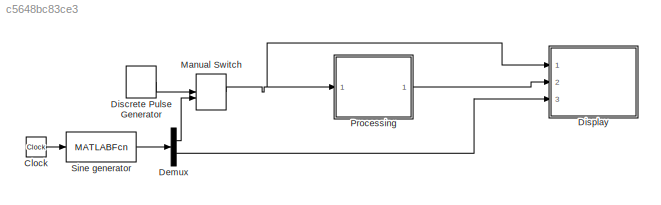
MODEL slx_c5648bc83ce3
KIND model
CONFIG AbsTol = auto
CONFIG EnableMultiTasking = off
CONFIG FixedStep = auto
CONFIG InitFcn = clear all;
CONFIG MaxStep = auto
CONFIG MinStep = auto
CONFIG RelTol = 1e-3
CONFIG SampleTimeConstraint = Unconstrained
CONFIG Solver = VariableStepAuto
CONFIG SolverName = VariableStepAuto
CONFIG StartTime = 0.0
CONFIG StopFcn = plots
CONFIG StopTime = 40
BLOCK [Clock] Clock
BLOCK [Demux] Demux
  DisplayOption = bar
  Outputs = 2
  Ports = [1, 2]
BLOCK [DiscretePulseGenerator] Discrete Pulse Generator
  Period = 100
  PhaseDelay = 2
  Ports = [0, 1]
  SampleTime = 0.005
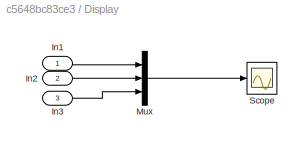
BLOCK [SubSystem] Display
  Ports = [3]
  RequestExecContextInheritance = off
BLOCK [Inport] Display/In1
  IconDisplay = Port number
BLOCK [Inport] Display/In2
  IconDisplay = Port number
  Port = 2
BLOCK [Inport] Display/In3
  IconDisplay = Port number
  Port = 3
BLOCK [Mux] Display/Mux
  DisplayOption = bar
  Inputs = 3
  Ports = [3, 1]
BLOCK [Scope] Display/Scope
  Floating = off
  NumInputPorts = 1
  Ports = [1]
  ScopeSpecificationString = Simulink.scopes.TimeScopeBlockCfg('CurrentConfiguration', extmgr.ConfigurationSet(extmgr.Configuration('Core','General UI',true,'FigureColor',[1 1 1]),extmgr.Configuration('Core','Source UI',true),extmgr.Configuration('Sources','WiredSimulink',true,'DataLogging',true,'DataLoggingVariableName','InOutData','DataLoggingSaveFormat','StructureWithTime'),extmgr.Configuration('Visuals','Time Domain',true...<+1633ch>
BLOCK [ManualSwitch] Manual Switch
  CurrentSetting = 0
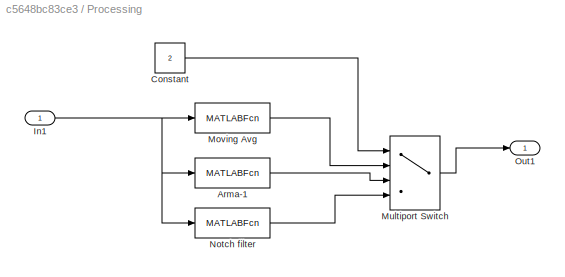
BLOCK [SubSystem] Processing
  Ports = [1, 1]
  RequestExecContextInheritance = off
BLOCK [MATLABFcn] Processing/Arma-1
  MATLABFcn = arma_1
  Ports = [1, 1]
BLOCK [Constant] Processing/Constant
  Value = 2
BLOCK [Inport] Processing/In1
  IconDisplay = Port number
BLOCK [MATLABFcn] Processing/Moving Avg
  MATLABFcn = moving_avg
  Ports = [1, 1]
BLOCK [MultiPortSwitch] Processing/Multiport Switch
  InputSameDT = off
  Ports = [4, 1]
  SaturateOnIntegerOverflow = off
BLOCK [MATLABFcn] Processing/Notch filter
  MATLABFcn = arma_notch
  Ports = [1, 1]
BLOCK [Outport] Processing/Out1
  IconDisplay = Port number
BLOCK [MATLABFcn] Sine generator
  MATLABFcn = generate_sin
  Ports = [1, 1]
LINE Clock:1 -> Sine generator:1
LINE Demux:1 -> Manual Switch:2
LINE Demux:2 -> Display:3
LINE Discrete Pulse Generator:1 -> Manual Switch:1
LINE Display/In1:1 -> Display/Mux:1
LINE Display/In2:1 -> Display/Mux:2
LINE Display/In3:1 -> Display/Mux:3
LINE Display/Mux:1 -> Display/Scope:1
NET Manual Switch:1 -> Display:1, Processing:1
LINE Processing/Arma-1:1 -> Processing/Multiport Switch:3
LINE Processing/Constant:1 -> Processing/Multiport Switch:1
NET Processing/In1:1 -> Processing/Arma-1:1, Processing/Moving Avg:1, Processing/Notch filter:1
LINE Processing/Moving Avg:1 -> Processing/Multiport Switch:2
LINE Processing/Multiport Switch:1 -> Processing/Out1:1
LINE Processing/Notch filter:1 -> Processing/Multiport Switch:4
LINE Processing:1 -> Display:2
LINE Sine generator:1 -> Demux:1
note: NET lines group one-source signal fan-out (src -> all destinations, sorted); 1:1 wires keep LINE
